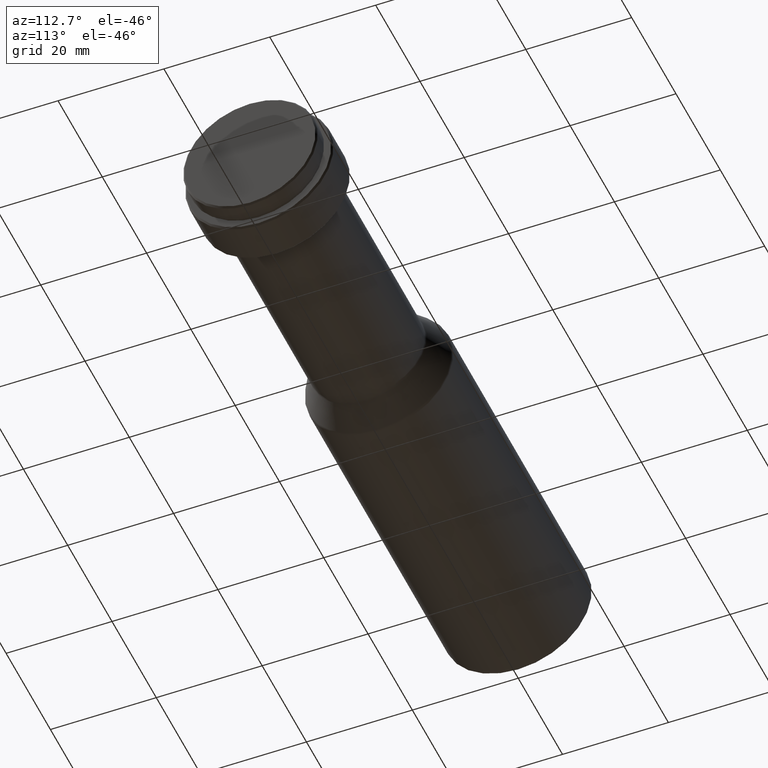
[diagram: clean part render]
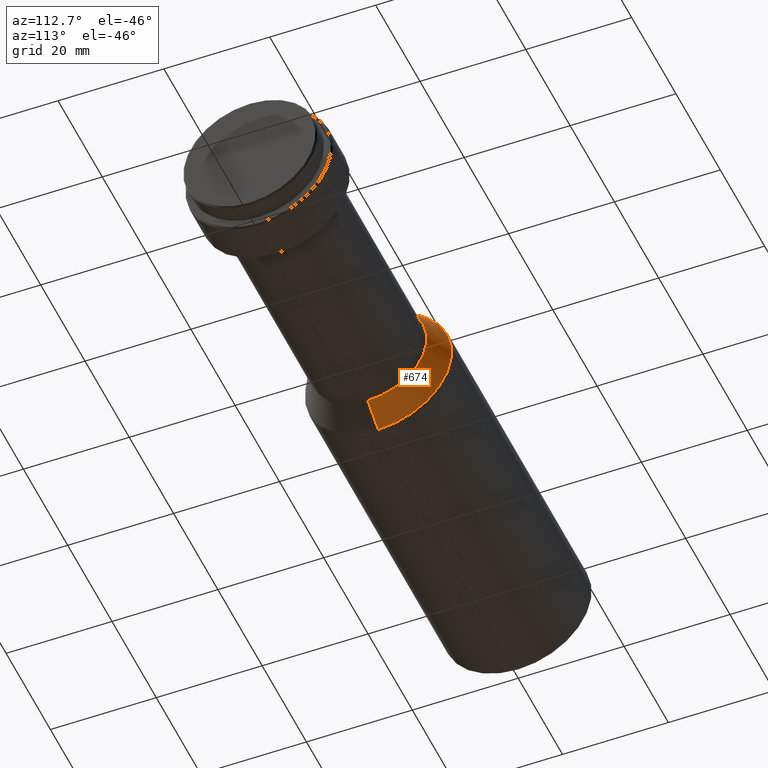
[diagram: same view with one face highlighted and labeled with its STEP entity id]
A machine part, auxiliary view. The second image highlights one B-rep face of the part: STEP entity #674.
In plain terms, the highlighted conical surface has half-angle 30.169 deg.
Its self-contained STEP definition (entity closure, byte-faithful):
#8 = CARTESIAN_POINT ( 'NONE',  ( 67.89744790704824600, 0.0000000000000000000, 11.13545307017500200 ) ) ;
#9 = VERTEX_POINT ( 'NONE', #555 ) ;
#32 = CARTESIAN_POINT ( 'NONE',  ( 63.20255209295175500, 0.0000000000000000000, 13.86454692982498400 ) ) ;
#36 = CIRCLE ( 'NONE', #64, 13.86454692982498400 ) ;
#64 = AXIS2_PLACEMENT_3D ( 'NONE', #309, #248, #439 ) ;
#75 = CONICAL_SURFACE ( 'NONE', #773, 11.13545307017500200, 0.5265481941832603800 ) ;
#108 = DIRECTION ( 'NONE',  ( -0.8645469298249874900, 6.154488120381683500E-017, -0.5025520929517537400 ) ) ;
#113 = LINE ( 'NONE', #430, #803 ) ;
#117 = AXIS2_PLACEMENT_3D ( 'NONE', #232, #358, #629 ) ;
#120 = ORIENTED_EDGE ( 'NONE', *, *, #634, .T. ) ;
#154 = EDGE_CURVE ( 'NONE', #489, #9, #36, .T. ) ;
#210 = LINE ( 'NONE', #8, #407 ) ;
#225 = FACE_OUTER_BOUND ( 'NONE', #703, .T. ) ;
#232 = CARTESIAN_POINT ( 'NONE',  ( 67.89744790704824600, 0.0000000000000000000, 0.0000000000000000000 ) ) ;
#248 = DIRECTION ( 'NONE',  ( -1.000000000000000000, -0.0000000000000000000, -0.0000000000000000000 ) ) ;
#298 = DIRECTION ( 'NONE',  ( 0.0000000000000000000, 0.0000000000000000000, 1.000000000000000000 ) ) ;
#299 = EDGE_CURVE ( 'NONE', #814, #489, #210, .T. ) ;
#309 = CARTESIAN_POINT ( 'NONE',  ( 63.20255209295175500, 0.0000000000000000000, 0.0000000000000000000 ) ) ;
#358 = DIRECTION ( 'NONE',  ( -1.000000000000000000, -0.0000000000000000000, -0.0000000000000000000 ) ) ;
#407 = VECTOR ( 'NONE', #464, 1000.000000000000200 ) ;
#414 = CIRCLE ( 'NONE', #117, 11.13545307017500200 ) ;
#430 = CARTESIAN_POINT ( 'NONE',  ( 67.89744790704824600, 1.363699695944538400E-015, -11.13545307017500200 ) ) ;
#439 = DIRECTION ( 'NONE',  ( 0.0000000000000000000, 0.0000000000000000000, 1.000000000000000000 ) ) ;
#452 = ORIENTED_EDGE ( 'NONE', *, *, #299, .F. ) ;
#464 = DIRECTION ( 'NONE',  ( -0.8645469298249874900, 0.0000000000000000000, 0.5025520929517537400 ) ) ;
#471 = CARTESIAN_POINT ( 'NONE',  ( 67.89744790704824600, 0.0000000000000000000, 11.13545307017500200 ) ) ;
#489 = VERTEX_POINT ( 'NONE', #32 ) ;
#512 = DIRECTION ( 'NONE',  ( -1.000000000000000000, -0.0000000000000000000, -0.0000000000000000000 ) ) ;
#514 = ORIENTED_EDGE ( 'NONE', *, *, #653, .T. ) ;
#555 = CARTESIAN_POINT ( 'NONE',  ( 63.20255209295175500, 1.706211410365068600E-015, -13.86454692982498400 ) ) ;
#628 = CARTESIAN_POINT ( 'NONE',  ( 67.89744790704824600, 0.0000000000000000000, 0.0000000000000000000 ) ) ;
#629 = DIRECTION ( 'NONE',  ( 0.0000000000000000000, 0.0000000000000000000, 1.000000000000000000 ) ) ;
#634 = EDGE_CURVE ( 'NONE', #814, #640, #414, .T. ) ;
#640 = VERTEX_POINT ( 'NONE', #801 ) ;
#653 = EDGE_CURVE ( 'NONE', #640, #9, #113, .T. ) ;
#674 = ADVANCED_FACE ( 'NONE', ( #225 ), #75, .T. ) ;
#703 = EDGE_LOOP ( 'NONE', ( #120, #514, #753, #452 ) ) ;
#753 = ORIENTED_EDGE ( 'NONE', *, *, #154, .F. ) ;
#773 = AXIS2_PLACEMENT_3D ( 'NONE', #628, #512, #298 ) ;
#801 = CARTESIAN_POINT ( 'NONE',  ( 67.89744790704824600, 1.530808498934190700E-015, -11.13545307017500200 ) ) ;
#803 = VECTOR ( 'NONE', #108, 1000.000000000000200 ) ;
#814 = VERTEX_POINT ( 'NONE', #471 ) ;